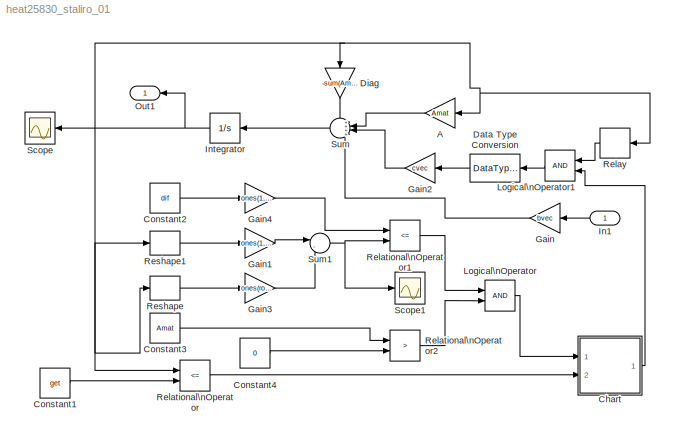
MODEL heat25830_staliro_01
KIND model
BLOCK [Gain] A
  Gain = Amat
  Multiplication = Matrix(K*u)
  SID = 2
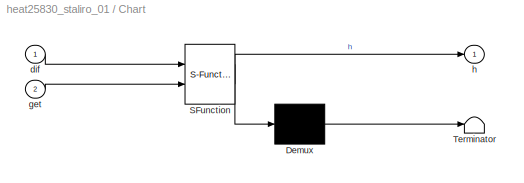
BLOCK [SubSystem] Chart
  FunctionWithSeparateData = off
  MaskDescription = Stateflow diagram
  MaskDisplay = plot(sf('Private','sfblk','xIcon'),sf('Private','sfblk','yIcon'));text(0.5,0,sf('Private', 'sfblk', 'tIcon'),'HorizontalAl','Center','VerticalAl','Bottom');
  MaskHideContents = off
  MaskIconFrame = off
  MaskIconOpaque = off
  MaskIconRotate = none
  MaskIconUnits = autoscale
  MaskPortRotate = default
  MaskSelfModifiable = on
  MaskType = Stateflow
  MinAlgLoopOccurrences = off
  Opaque = off
  PermitHierarchicalResolution = ExplicitOnly
  Ports = [2, 1]
  PropExecContextOutsideSubsystem = off
  RTWSystemCode = Auto
  RequestExecContextInheritance = off
  SID = 3
  TreatAsAtomicUnit = on
BLOCK [Demux] Chart/ Demux 
  Outputs = 1
  Ports = [1, 1]
  SID = 3::8
BLOCK [S-Function] Chart/ SFunction 
  EnableBusSupport = on
  FunctionName = sf_sfun
  Parameters = h,rooms
  PortCounts = [2 2]
  Ports = [2, 2]
  SID = 3::7
  Tag = Stateflow S-Function heat25830_staliro_01 1
BLOCK [Terminator] Chart/ Terminator 
  SID = 3::10
BLOCK [Inport] Chart/dif
  IconDisplay = Port number
  SID = 3::1
BLOCK [Inport] Chart/get
  IconDisplay = Port number
  Port = 2
  SID = 3::2
BLOCK [Outport] Chart/h
  IconDisplay = Port number
  SID = 3::6
BLOCK [Constant] Constant1
  SID = 4
  Value = get
BLOCK [Constant] Constant2
  SID = 5
  Value = dif
BLOCK [Constant] Constant3
  SID = 6
  Value = Amat
  VectorParams1D = off
BLOCK [Constant] Constant4
  SID = 7
  Value = 0
BLOCK [DataTypeConversion] Data Type Conversion
  OutDataTypeStr = double
  SID = 8
BLOCK [Gain] Diag
  Gain = -sum(Amat')'-bvec
  SID = 9
BLOCK [Gain] Gain
  Gain = bvec
  SID = 10
BLOCK [Gain] Gain1
  Gain = ones(1,rooms)
  Multiplication = Matrix(u*K)
  SID = 11
BLOCK [Gain] Gain2
  Gain = cvec
  SID = 12
BLOCK [Gain] Gain3
  Gain = ones(rooms,1)
  Multiplication = Matrix(K*u)
  SID = 13
BLOCK [Gain] Gain4
  Gain = ones(1,rooms)
  Multiplication = Matrix(u*K)
  SID = 14
BLOCK [Inport] In1
  IconDisplay = Port number
  SID = 1
BLOCK [Integrator] Integrator
  InitialCondition = xinit
  Ports = [1, 1]
  SID = 15
BLOCK [Logic] Logical\nOperator
  AllPortsSameDT = off
  Ports = [2, 1]
  SID = 16
BLOCK [Logic] Logical\nOperator1
  AllPortsSameDT = off
  Ports = [2, 1]
  SID = 17
BLOCK [Outport] Out1
  IconDisplay = Port number
  SID = 28
BLOCK [RelationalOperator] Relational\nOperator
  InputSameDT = off
  Operator = <=
  OutDataTypeStr = boolean
  Ports = [2, 1]
  SID = 18
BLOCK [RelationalOperator] Relational\nOperator1
  InputSameDT = off
  Operator = <=
  OutDataTypeStr = boolean
  Ports = [2, 1]
  SID = 19
BLOCK [RelationalOperator] Relational\nOperator2
  InputSameDT = off
  Operator = >
  OutDataTypeStr = boolean
  Ports = [2, 1]
  SID = 20
BLOCK [Relay] Relay
  OffOutputValue = 1
  OffSwitchValue = on
  OnOutputValue = 0
  OnSwitchValue = off
  SID = 21
BLOCK [Reshape] Reshape
  OutputDimensionality = Row vector (2-D)
  Ports = [1, 1]
  SID = 22
BLOCK [Reshape] Reshape1
  OutputDimensionality = Column vector (2-D)
  Ports = [1, 1]
  SID = 23
BLOCK [Scope] Scope
  DataFormat = StructureWithTime
  Floating = off
  LimitDataPoints = off
  NumInputPorts = 1
  Ports = [1]
  SID = 24
  SampleTime = 0
  YMax = 21.5
  YMin = 15.5
  ZoomMode = yonly
BLOCK [Scope] Scope1
  DataFormat = StructureWithTime
  Floating = off
  NumInputPorts = 1
  Ports = [1]
  SID = 25
  SampleTime = 0
  SaveName = ScopeData1
  YMax = 7.5
  YMin = -7.5
BLOCK [Sum] Sum
  IconShape = round
  InputSameDT = off
  Inputs = ++++
  OutDataTypeStr = Inherit: Inherit via internal rule
  Ports = [4, 1]
  SID = 26
BLOCK [Sum] Sum1
  IconShape = round
  InputSameDT = off
  Inputs = |-+
  OutDataTypeStr = Inherit: Inherit via internal rule
  Ports = [2, 1]
  SID = 27
LINE A:1 -> Sum:2
LINE Chart/ Demux :1 -> Chart/ Terminator :1
LINE Chart/ SFunction :1 -> Chart/ Demux :1
LINE Chart/ SFunction :2 -> Chart/h:1
LINE Chart/dif:1 -> Chart/ SFunction :1
LINE Chart/get:1 -> Chart/ SFunction :2
LINE Chart:1 -> Logical\nOperator1:2
LINE Constant1:1 -> Relational\nOperator:2
LINE Constant2:1 -> Gain4:1
LINE Constant3:1 -> Relational\nOperator2:1
LINE Constant4:1 -> Relational\nOperator2:2
LINE Data Type Conversion:1 -> Gain2:1
LINE Diag:1 -> Sum:1
LINE Gain1:1 -> Sum1:1
LINE Gain2:1 -> Sum:3
LINE Gain3:1 -> Sum1:2
LINE Gain4:1 -> Relational\nOperator1:1
LINE Gain:1 -> Sum:4
LINE In1:1 -> Gain:1
NET Integrator:1 -> A:1, Diag:1, Out1:1, Relational\nOperator:1, Relay:1, Reshape1:1, Reshape:1, Scope:1
LINE Logical\nOperator1:1 -> Data Type Conversion:1
LINE Logical\nOperator:1 -> Chart:1
LINE Relational\nOperator1:1 -> Logical\nOperator:1
LINE Relational\nOperator2:1 -> Logical\nOperator:2
LINE Relational\nOperator:1 -> Chart:2
LINE Relay:1 -> Logical\nOperator1:1
LINE Reshape1:1 -> Gain1:1
LINE Reshape:1 -> Gain3:1
NET Sum1:1 -> Relational\nOperator1:2, Scope1:1
LINE Sum:1 -> Integrator:1
note: NET lines group one-source signal fan-out (src -> all destinations, sorted); 1:1 wires keep LINE
CHART Chart states=1 transitions=18
  STATE_LABEL 'main'
